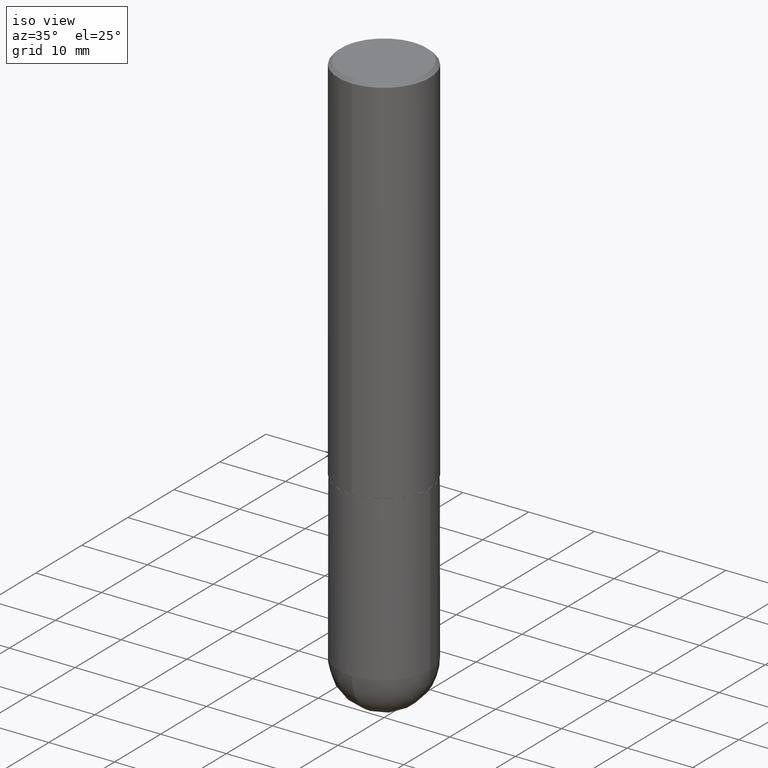
[diagram: clean part render]
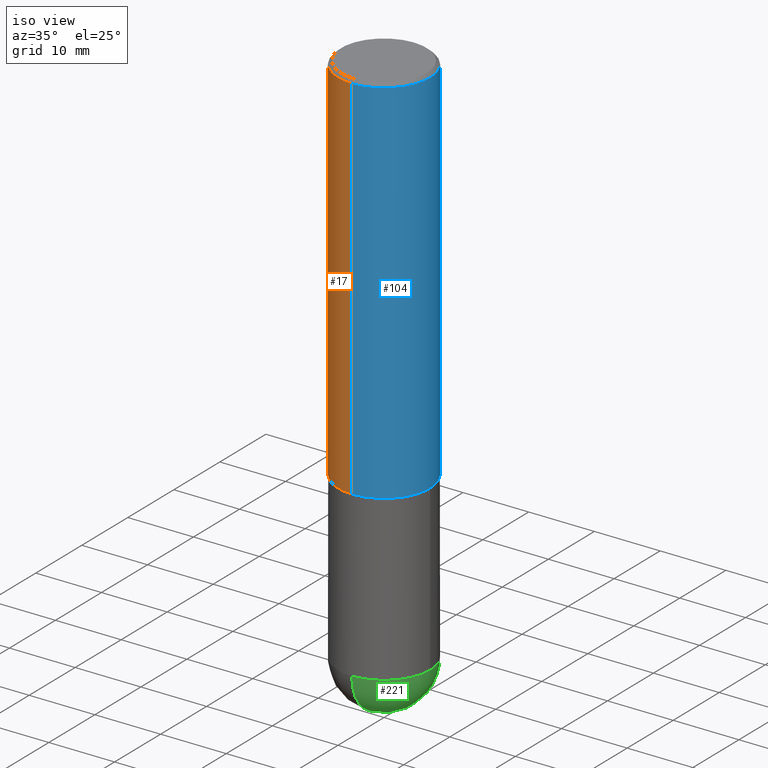
[diagram: same view with three faces highlighted in distinct colors, each labeled with its STEP entity id]
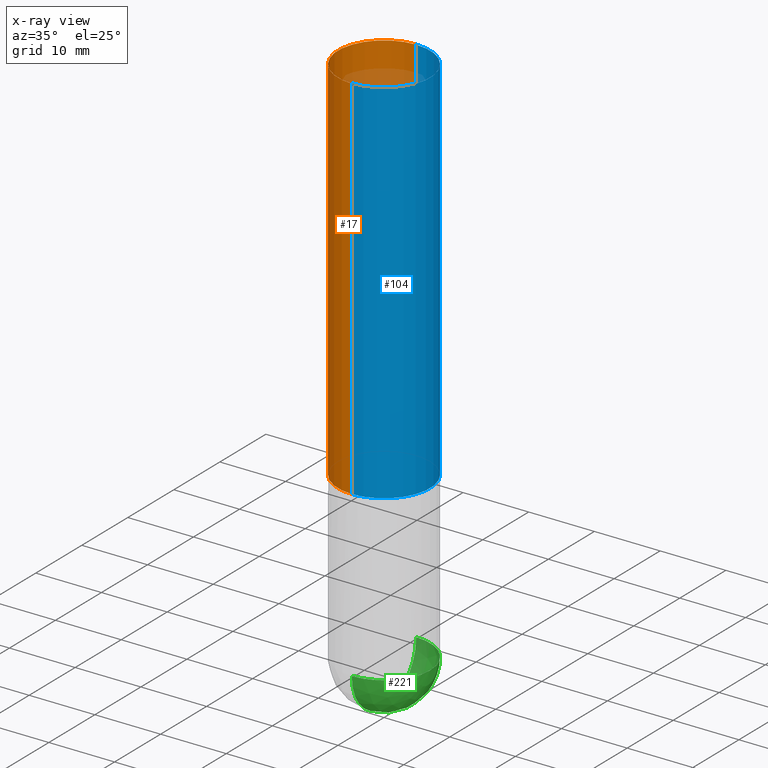
[diagram: x-ray of the same camera — body ghosted, the three highlighted faces saturated]
A machine part, iso view with three faces highlighted in distinct colors.
The next image is the same camera in x-ray (body ghosted, the three faces saturated) — at least one of them is partly hidden behind the body in this view.
Their STEP definitions:

[orange] entity #17 — the highlighted cylindrical surface (partial cylindrical patch) has radius 7.0002 mm, axis along (-0, 0, 1).
#17 = ADVANCED_FACE ( 'NONE', ( #159 ), #286, .T. ) ;
#43 = VECTOR ( 'NONE', #191, 39.37007874015748143 ) ;
#45 = VERTEX_POINT ( 'NONE', #390 ) ;
#47 = VERTEX_POINT ( 'NONE', #297 ) ;
#52 = CARTESIAN_POINT ( 'NONE',  ( 0.000000000000000000, 0.000000000000000000, 0.000000000000000000 ) ) ;
#57 = CIRCLE ( 'NONE', #166, 0.2756000000000002892 ) ;
#64 = CARTESIAN_POINT ( 'NONE',  ( -1.924504513970335743E-15, -0.2756000000000001227, 9.621134228878268423E-16 ) ) ;
#82 = AXIS2_PLACEMENT_3D ( 'NONE', #52, #407, #88 ) ;
#88 = DIRECTION ( 'NONE',  ( -6.982962677686265922E-15, -1.000000000000000000, 3.490977586675712751E-15 ) ) ;
#91 = DIRECTION ( 'NONE',  ( -2.445820574443535340E-29, 3.490977586675712751E-15, 1.000000000000000000 ) ) ;
#95 = ORIENTED_EDGE ( 'NONE', *, *, #240, .F. ) ;
#110 = VERTEX_POINT ( 'NONE', #138 ) ;
#119 = ORIENTED_EDGE ( 'NONE', *, *, #193, .T. ) ;
#121 = DIRECTION ( 'NONE',  ( -6.982962677686265922E-15, -1.000000000000000000, 3.484816075009406388E-15 ) ) ;
#138 = CARTESIAN_POINT ( 'NONE',  ( -1.924504513970282100E-15, -0.2756000000000080608, -2.243099999999998317 ) ) ;
#140 = EDGE_CURVE ( 'NONE', #110, #45, #381, .T. ) ;
#141 = AXIS2_PLACEMENT_3D ( 'NONE', #197, #294, #121 ) ;
#156 = DIRECTION ( 'NONE',  ( -2.445820574443535340E-29, 3.490977586675712751E-15, 1.000000000000000000 ) ) ;
#159 = FACE_OUTER_BOUND ( 'NONE', #195, .T. ) ;
#166 = AXIS2_PLACEMENT_3D ( 'NONE', #311, #91, #258 ) ;
#191 = DIRECTION ( 'NONE',  ( -2.445820574443535340E-29, 3.490977586675712751E-15, 1.000000000000000000 ) ) ;
#193 = EDGE_CURVE ( 'NONE', #301, #110, #57, .T. ) ;
#195 = EDGE_LOOP ( 'NONE', ( #336, #119, #334, #95 ) ) ;
#197 = CARTESIAN_POINT ( 'NONE',  ( 4.891641148887086514E-31, -6.981955173351448133E-17, -0.02000000000000006287 ) ) ;
#234 = CARTESIAN_POINT ( 'NONE',  ( 1.958255779754864988E-15, 0.2755999999999924621, -2.243100000000000538 ) ) ;
#240 = EDGE_CURVE ( 'NONE', #47, #45, #396, .T. ) ;
#258 = DIRECTION ( 'NONE',  ( -6.982962677686265922E-15, -1.000000000000000000, 3.964946289788476952E-15 ) ) ;
#286 = CYLINDRICAL_SURFACE ( 'NONE', #82, 0.2756000000000001227 ) ;
#287 = CARTESIAN_POINT ( 'NONE',  ( 1.958255779754836589E-15, 0.2756000000000001227, -9.621134228878268423E-16 ) ) ;
#294 = DIRECTION ( 'NONE',  ( -2.445820574443535340E-29, 3.490977586675712751E-15, 1.000000000000000000 ) ) ;
#297 = CARTESIAN_POINT ( 'NONE',  ( 1.924504513970335348E-15, 0.2755999999999999006, -0.02000000000000102390 ) ) ;
#301 = VERTEX_POINT ( 'NONE', #234 ) ;
#311 = CARTESIAN_POINT ( 'NONE',  ( 5.486220130534292634E-29, -7.830611824672289154E-15, -2.243099999999999206 ) ) ;
#330 = VECTOR ( 'NONE', #156, 39.37007874015748143 ) ;
#334 = ORIENTED_EDGE ( 'NONE', *, *, #140, .T. ) ;
#336 = ORIENTED_EDGE ( 'NONE', *, *, #399, .F. ) ;
#377 = LINE ( 'NONE', #287, #330 ) ;
#381 = LINE ( 'NONE', #64, #43 ) ;
#390 = CARTESIAN_POINT ( 'NONE',  ( -1.890753248185833319E-15, -0.2756000000000000671, -0.01999999999999910530 ) ) ;
#396 = CIRCLE ( 'NONE', #141, 0.2756000000000000116 ) ;
#399 = EDGE_CURVE ( 'NONE', #301, #47, #377, .T. ) ;
#407 = DIRECTION ( 'NONE',  ( -2.445820574443535340E-29, 3.490977586675712751E-15, 1.000000000000000000 ) ) ;

[blue] entity #104 — the highlighted cylindrical surface (partial cylindrical patch) has radius 7.0002 mm, axis along (-0, 0, 1).
#6 = CYLINDRICAL_SURFACE ( 'NONE', #10, 0.2756000000000001227 ) ;
#10 = AXIS2_PLACEMENT_3D ( 'NONE', #327, #168, #170 ) ;
#43 = VECTOR ( 'NONE', #191, 39.37007874015748143 ) ;
#45 = VERTEX_POINT ( 'NONE', #390 ) ;
#47 = VERTEX_POINT ( 'NONE', #297 ) ;
#64 = CARTESIAN_POINT ( 'NONE',  ( -1.924504513970335743E-15, -0.2756000000000001227, 9.621134228878268423E-16 ) ) ;
#67 = FACE_OUTER_BOUND ( 'NONE', #109, .T. ) ;
#75 = DIRECTION ( 'NONE',  ( -2.445820574443535340E-29, 3.490977586675712751E-15, 1.000000000000000000 ) ) ;
#77 = CARTESIAN_POINT ( 'NONE',  ( 4.891641148887086514E-31, -6.981955173351448133E-17, -0.02000000000000006287 ) ) ;
#104 = ADVANCED_FACE ( 'NONE', ( #67 ), #6, .T. ) ;
#108 = AXIS2_PLACEMENT_3D ( 'NONE', #77, #75, #114 ) ;
#109 = EDGE_LOOP ( 'NONE', ( #332, #341, #179, #403 ) ) ;
#110 = VERTEX_POINT ( 'NONE', #138 ) ;
#114 = DIRECTION ( 'NONE',  ( -6.982962677686265922E-15, -1.000000000000000000, 3.484816075009406388E-15 ) ) ;
#138 = CARTESIAN_POINT ( 'NONE',  ( -1.924504513970282100E-15, -0.2756000000000080608, -2.243099999999998317 ) ) ;
#140 = EDGE_CURVE ( 'NONE', #110, #45, #381, .T. ) ;
#156 = DIRECTION ( 'NONE',  ( -2.445820574443535340E-29, 3.490977586675712751E-15, 1.000000000000000000 ) ) ;
#161 = CARTESIAN_POINT ( 'NONE',  ( 5.486220130534292634E-29, -7.830611824672289154E-15, -2.243099999999999206 ) ) ;
#168 = DIRECTION ( 'NONE',  ( -2.445820574443535340E-29, 3.490977586675712751E-15, 1.000000000000000000 ) ) ;
#169 = EDGE_CURVE ( 'NONE', #110, #301, #278, .T. ) ;
#170 = DIRECTION ( 'NONE',  ( -6.982962677686265922E-15, -1.000000000000000000, 3.490977586675712751E-15 ) ) ;
#179 = ORIENTED_EDGE ( 'NONE', *, *, #364, .F. ) ;
#191 = DIRECTION ( 'NONE',  ( -2.445820574443535340E-29, 3.490977586675712751E-15, 1.000000000000000000 ) ) ;
#234 = CARTESIAN_POINT ( 'NONE',  ( 1.958255779754864988E-15, 0.2755999999999924621, -2.243100000000000538 ) ) ;
#263 = CIRCLE ( 'NONE', #108, 0.2756000000000000116 ) ;
#278 = CIRCLE ( 'NONE', #370, 0.2756000000000002892 ) ;
#287 = CARTESIAN_POINT ( 'NONE',  ( 1.958255779754836589E-15, 0.2756000000000001227, -9.621134228878268423E-16 ) ) ;
#297 = CARTESIAN_POINT ( 'NONE',  ( 1.924504513970335348E-15, 0.2755999999999999006, -0.02000000000000102390 ) ) ;
#301 = VERTEX_POINT ( 'NONE', #234 ) ;
#327 = CARTESIAN_POINT ( 'NONE',  ( 0.000000000000000000, 0.000000000000000000, 0.000000000000000000 ) ) ;
#330 = VECTOR ( 'NONE', #156, 39.37007874015748143 ) ;
#332 = ORIENTED_EDGE ( 'NONE', *, *, #169, .T. ) ;
#341 = ORIENTED_EDGE ( 'NONE', *, *, #399, .T. ) ;
#352 = DIRECTION ( 'NONE',  ( -2.445820574443535340E-29, 3.490977586675712751E-15, 1.000000000000000000 ) ) ;
#364 = EDGE_CURVE ( 'NONE', #45, #47, #263, .T. ) ;
#370 = AXIS2_PLACEMENT_3D ( 'NONE', #161, #352, #406 ) ;
#377 = LINE ( 'NONE', #287, #330 ) ;
#381 = LINE ( 'NONE', #64, #43 ) ;
#390 = CARTESIAN_POINT ( 'NONE',  ( -1.890753248185833319E-15, -0.2756000000000000671, -0.01999999999999910530 ) ) ;
#399 = EDGE_CURVE ( 'NONE', #301, #47, #377, .T. ) ;
#403 = ORIENTED_EDGE ( 'NONE', *, *, #140, .F. ) ;
#406 = DIRECTION ( 'NONE',  ( -6.982962677686265922E-15, -1.000000000000000000, 3.964946289788476952E-15 ) ) ;

[green] entity #221 — the highlighted spherical surface has radius 7.0002 mm.
#2 = CIRCLE ( 'NONE', #48, 0.2756000000000003447 ) ;
#18 = ORIENTED_EDGE ( 'NONE', *, *, #85, .F. ) ;
#25 = DIRECTION ( 'NONE',  ( -2.445468806185136597E-29, 3.491481338843145583E-15, 1.000000000000000000 ) ) ;
#37 = CARTESIAN_POINT ( 'NONE',  ( 1.924504513970413840E-15, 0.2755999999999887429, -3.228300000000000836 ) ) ;
#40 = CARTESIAN_POINT ( 'NONE',  ( 7.563587169093589749E-29, -1.174573157432737594E-14, -3.228299999999999503 ) ) ;
#48 = AXIS2_PLACEMENT_3D ( 'NONE', #40, #285, #225 ) ;
#51 = CARTESIAN_POINT ( 'NONE',  ( 0.2756000000000000671, -1.147789575331294974E-14, -3.228299999999999503 ) ) ;
#53 = ORIENTED_EDGE ( 'NONE', *, *, #299, .F. ) ;
#85 = EDGE_CURVE ( 'NONE', #317, #252, #232, .T. ) ;
#101 = CIRCLE ( 'NONE', #331, 0.2756000000000000671 ) ;
#124 = FACE_OUTER_BOUND ( 'NONE', #274, .T. ) ;
#149 = AXIS2_PLACEMENT_3D ( 'NONE', #358, #203, #268 ) ;
#151 = AXIS2_PLACEMENT_3D ( 'NONE', #316, #239, #231 ) ;
#158 = CIRCLE ( 'NONE', #151, 0.2756000000000000671 ) ;
#162 = EDGE_CURVE ( 'NONE', #317, #259, #2, .T. ) ;
#164 = SPHERICAL_SURFACE ( 'NONE', #171, 0.2756000000000003447 ) ;
#171 = AXIS2_PLACEMENT_3D ( 'NONE', #254, #288, #383 ) ;
#202 = CARTESIAN_POINT ( 'NONE',  ( 8.249342563543106087E-29, -1.269110819842029813E-14, -3.503899999999999793 ) ) ;
#203 = DIRECTION ( 'NONE',  ( -1.000000000000000000, 7.105427357601001070E-15, -4.926315508542082329E-29 ) ) ;
#221 = ADVANCED_FACE ( 'NONE', ( #124 ), #164, .T. ) ;
#225 = DIRECTION ( 'NONE',  ( 6.982962677686265922E-15, 1.000000000000000000, 0.000000000000000000 ) ) ;
#231 = DIRECTION ( 'NONE',  ( 1.000000000000000000, -6.982962677686264344E-15, 0.000000000000000000 ) ) ;
#232 = CIRCLE ( 'NONE', #149, 0.2756000000000003447 ) ;
#239 = DIRECTION ( 'NONE',  ( -2.445468806185136597E-29, 3.491481338843145583E-15, 1.000000000000000000 ) ) ;
#252 = VERTEX_POINT ( 'NONE', #354 ) ;
#254 = CARTESIAN_POINT ( 'NONE',  ( 7.563587169093589749E-29, -1.174573157432737594E-14, -3.228299999999999503 ) ) ;
#259 = VERTEX_POINT ( 'NONE', #37 ) ;
#268 = DIRECTION ( 'NONE',  ( -7.105427357601001859E-15, -1.000000000000000000, 0.000000000000000000 ) ) ;
#274 = EDGE_LOOP ( 'NONE', ( #18, #379, #410, #53 ) ) ;
#280 = EDGE_CURVE ( 'NONE', #346, #259, #101, .T. ) ;
#285 = DIRECTION ( 'NONE',  ( 1.000000000000000000, -6.982962677686265922E-15, 4.883557194083112340E-29 ) ) ;
#288 = DIRECTION ( 'NONE',  ( -1.000000000000000000, 6.982962677686265922E-15, -4.883557194083112340E-29 ) ) ;
#299 = EDGE_CURVE ( 'NONE', #252, #346, #158, .T. ) ;
#316 = CARTESIAN_POINT ( 'NONE',  ( 7.894706947007475996E-29, -1.127154920618732565E-14, -3.228299999999999503 ) ) ;
#317 = VERTEX_POINT ( 'NONE', #202 ) ;
#331 = AXIS2_PLACEMENT_3D ( 'NONE', #345, #25, #389 ) ;
#345 = CARTESIAN_POINT ( 'NONE',  ( 7.894706947007475996E-29, -1.127154920618732565E-14, -3.228299999999999503 ) ) ;
#346 = VERTEX_POINT ( 'NONE', #51 ) ;
#354 = CARTESIAN_POINT ( 'NONE',  ( -1.958255779754759675E-15, -0.2756000000000117245, -3.228299999999998615 ) ) ;
#358 = CARTESIAN_POINT ( 'NONE',  ( 7.563587169093589749E-29, -1.174573157432737594E-14, -3.228299999999999503 ) ) ;
#379 = ORIENTED_EDGE ( 'NONE', *, *, #162, .T. ) ;
#383 = DIRECTION ( 'NONE',  ( 6.982962677686265922E-15, 1.000000000000000000, -3.964946289788475374E-15 ) ) ;
#389 = DIRECTION ( 'NONE',  ( 1.000000000000000000, -6.982962677686264344E-15, 0.000000000000000000 ) ) ;
#410 = ORIENTED_EDGE ( 'NONE', *, *, #280, .F. ) ;